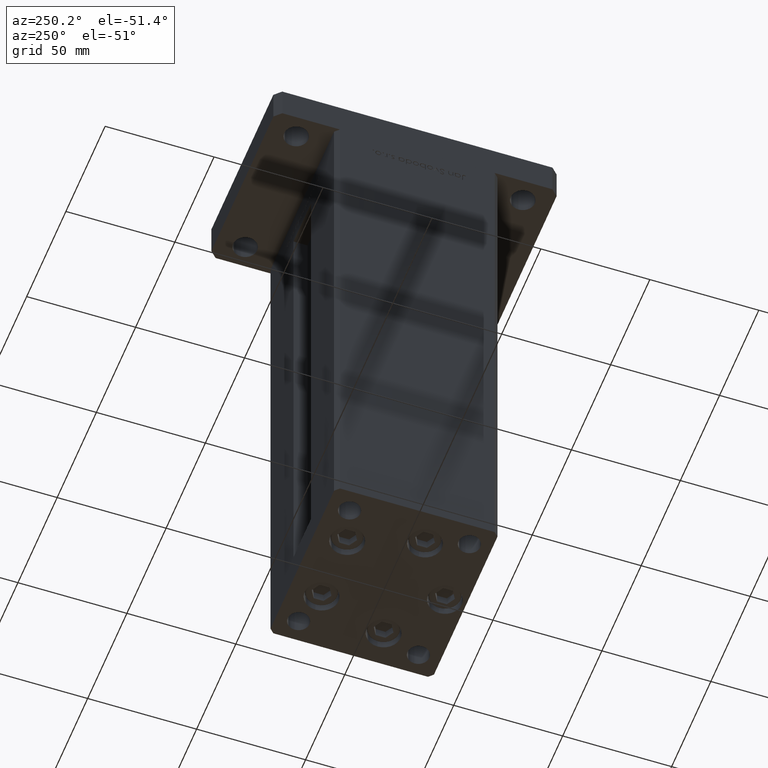
[diagram: clean part render]
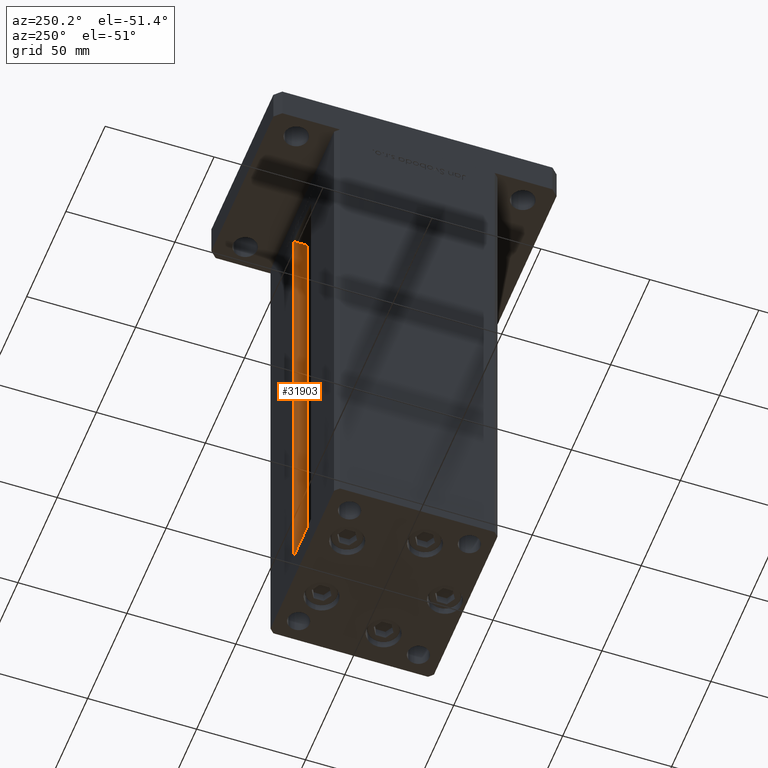
[diagram: same view with one face highlighted and labeled with its STEP entity id]
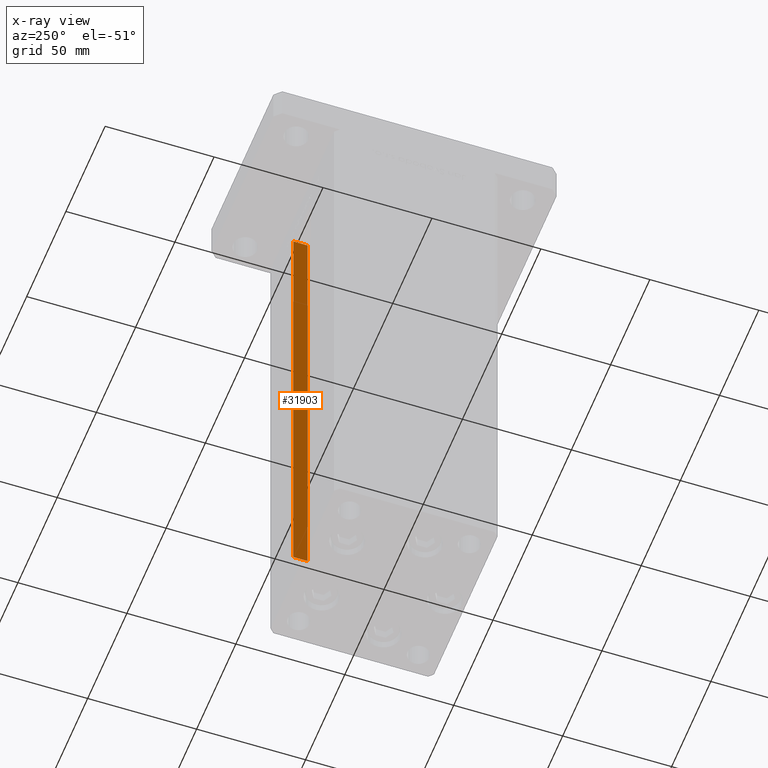
[diagram: x-ray of the same camera — body ghosted, the highlighted face saturated]
A machine part, auxiliary view. The second image highlights one B-rep face of the part: STEP entity #31903.
The next image is the same camera in x-ray: the body ghosted, the highlighted face saturated — about 0% of this face is hidden behind the body in this view.
In plain terms, the highlighted planar face has unit normal (1, 0, 0).
Its self-contained STEP definition (entity closure, byte-faithful):
#7539 = ORIENTED_EDGE ( 'NONE', *, *, #20078, .F. ) ;
#8691 = VERTEX_POINT ( 'NONE', #21304 ) ;
#10105 = LINE ( 'NONE', #30951, #50501 ) ;
#10877 = VECTOR ( 'NONE', #12714, 1000.000000000000000 ) ;
#11949 = EDGE_CURVE ( 'NONE', #8691, #48261, #36094, .T. ) ;
#12714 = DIRECTION ( 'NONE',  ( -0.000000000000000000, -0.000000000000000000, 1.000000000000000000 ) ) ;
#15200 = CARTESIAN_POINT ( 'NONE',  ( 11.25000000000000000, 30.99999999999999289, 218.5000000000000000 ) ) ;
#15402 = DIRECTION ( 'NONE',  ( 0.000000000000000000, 0.000000000000000000, -1.000000000000000000 ) ) ;
#18451 = VERTEX_POINT ( 'NONE', #35957 ) ;
#19689 = AXIS2_PLACEMENT_3D ( 'NONE', #45224, #28408, #15402 ) ;
#19713 = LINE ( 'NONE', #23490, #28601 ) ;
#20078 = EDGE_CURVE ( 'NONE', #18451, #28364, #10105, .T. ) ;
#21304 = CARTESIAN_POINT ( 'NONE',  ( 11.24999999999999289, 37.50000000000000000, 218.5000000000000000 ) ) ;
#22650 = ORIENTED_EDGE ( 'NONE', *, *, #40292, .F. ) ;
#23490 = CARTESIAN_POINT ( 'NONE',  ( 11.25000000000000000, 37.50000000000000000, 0.000000000000000000 ) ) ;
#24872 = FACE_OUTER_BOUND ( 'NONE', #33447, .T. ) ;
#26606 = DIRECTION ( 'NONE',  ( 0.000000000000000000, 1.000000000000000000, 0.000000000000000000 ) ) ;
#27053 = EDGE_CURVE ( 'NONE', #18451, #48261, #29026, .T. ) ;
#28364 = VERTEX_POINT ( 'NONE', #28840 ) ;
#28408 = DIRECTION ( 'NONE',  ( 1.000000000000000000, -0.000000000000000000, 0.000000000000000000 ) ) ;
#28601 = VECTOR ( 'NONE', #31902, 1000.000000000000000 ) ;
#28840 = CARTESIAN_POINT ( 'NONE',  ( 11.25000000000000000, 37.50000000000000000, 0.000000000000000000 ) ) ;
#29026 = LINE ( 'NONE', #45258, #10877 ) ;
#30951 = CARTESIAN_POINT ( 'NONE',  ( 11.25000000000000000, 30.99999999999999289, 0.000000000000000000 ) ) ;
#31902 = DIRECTION ( 'NONE',  ( -0.000000000000000000, -0.000000000000000000, 1.000000000000000000 ) ) ;
#31903 = ADVANCED_FACE ( 'NONE', ( #24872 ), #32214, .F. ) ;
#32214 = PLANE ( 'NONE',  #19689 ) ;
#33414 = ORIENTED_EDGE ( 'NONE', *, *, #27053, .T. ) ;
#33447 = EDGE_LOOP ( 'NONE', ( #22650, #7539, #33414, #45398 ) ) ;
#35957 = CARTESIAN_POINT ( 'NONE',  ( 11.25000000000000000, 30.99999999999999289, 0.000000000000000000 ) ) ;
#36094 = LINE ( 'NONE', #39640, #40885 ) ;
#39640 = CARTESIAN_POINT ( 'NONE',  ( 11.25000000000000000, 0.000000000000000000, 218.5000000000000000 ) ) ;
#40292 = EDGE_CURVE ( 'NONE', #28364, #8691, #19713, .T. ) ;
#40440 = DIRECTION ( 'NONE',  ( -0.000000000000000000, -1.000000000000000000, 0.000000000000000000 ) ) ;
#40885 = VECTOR ( 'NONE', #40440, 1000.000000000000000 ) ;
#45224 = CARTESIAN_POINT ( 'NONE',  ( 11.25000000000000000, 30.99999999999999289, 0.000000000000000000 ) ) ;
#45258 = CARTESIAN_POINT ( 'NONE',  ( 11.25000000000000000, 30.99999999999999289, 0.000000000000000000 ) ) ;
#45398 = ORIENTED_EDGE ( 'NONE', *, *, #11949, .F. ) ;
#48261 = VERTEX_POINT ( 'NONE', #15200 ) ;
#50501 = VECTOR ( 'NONE', #26606, 1000.000000000000000 ) ;